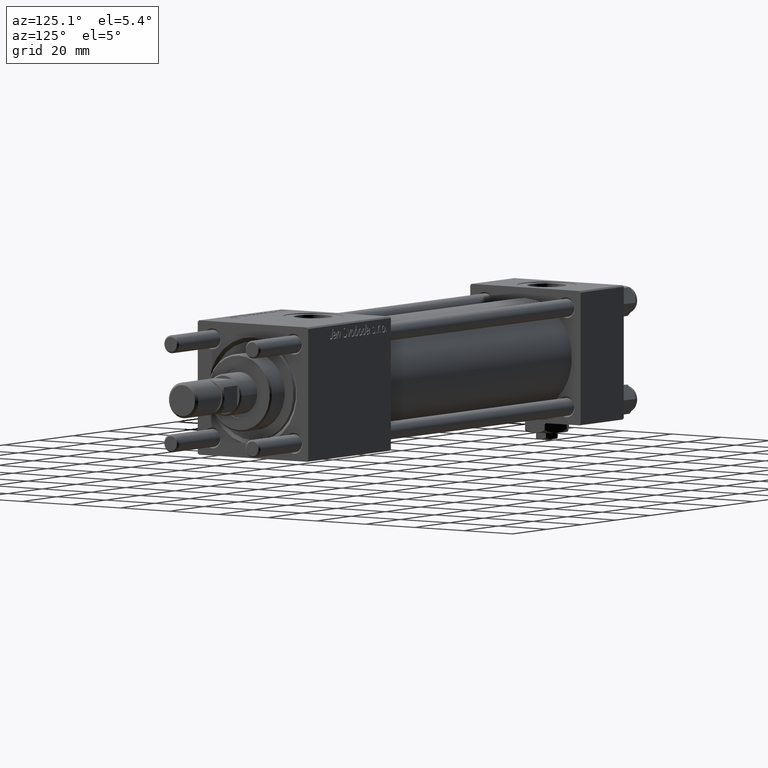
[diagram: clean part render]
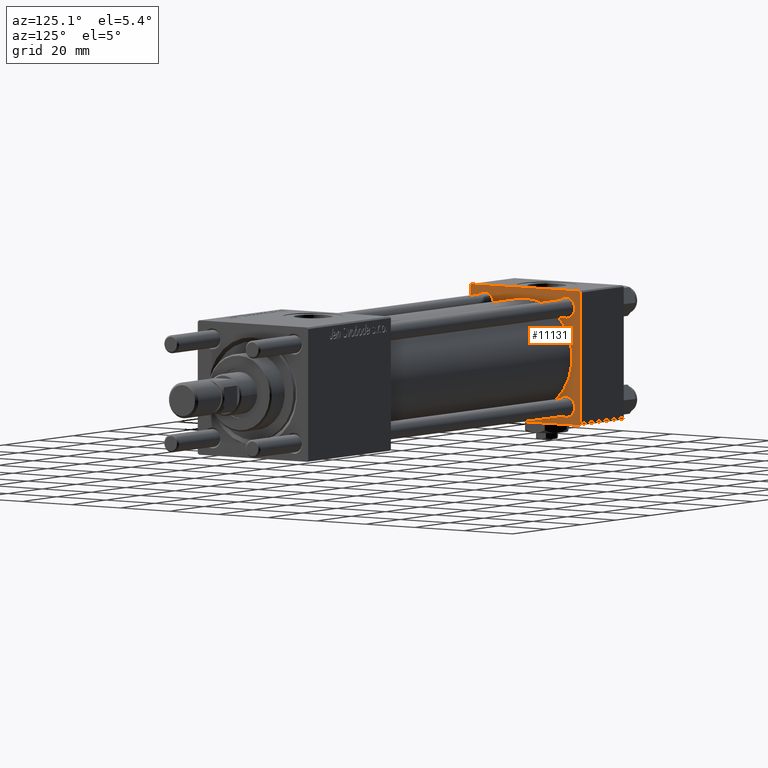
[diagram: same view with one face highlighted and labeled with its STEP entity id]
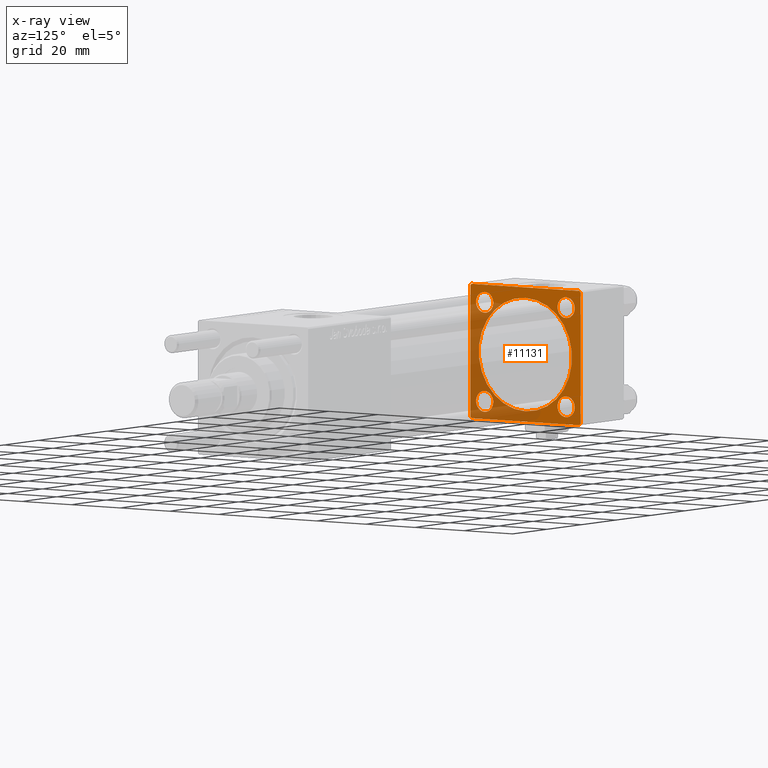
[diagram: x-ray of the same camera — body ghosted, the highlighted face saturated]
A machine part, auxiliary view. The second image highlights one B-rep face of the part: STEP entity #11131.
The next image is the same camera in x-ray: the body ghosted, the highlighted face saturated — about 39% of this face is hidden behind the body in this view.
In plain terms, the highlighted planar face has unit normal (-1, 0, 0).
Its self-contained STEP definition (entity closure, byte-faithful):
#255 = VERTEX_POINT ( 'NONE', #50735 ) ;
#278 = VERTEX_POINT ( 'NONE', #51613 ) ;
#405 = ORIENTED_EDGE ( 'NONE', *, *, #25760, .T. ) ;
#498 = EDGE_CURVE ( 'NONE', #20379, #278, #9229, .T. ) ;
#1074 = CARTESIAN_POINT ( 'NONE',  ( 25.00000000000000000, -16.59999999999999076, 20.09999999999998721 ) ) ;
#1351 = DIRECTION ( 'NONE',  ( 0.000000000000000000, -1.000000000000000000, -2.312964634635742957E-16 ) ) ;
#1618 = DIRECTION ( 'NONE',  ( -1.000000000000000000, 0.000000000000000000, -0.000000000000000000 ) ) ;
#1764 = VECTOR ( 'NONE', #13071, 999.9999999999998863 ) ;
#1952 = ORIENTED_EDGE ( 'NONE', *, *, #31156, .T. ) ;
#3039 = LINE ( 'NONE', #48104, #19505 ) ;
#3225 = ORIENTED_EDGE ( 'NONE', *, *, #35104, .T. ) ;
#3456 = CARTESIAN_POINT ( 'NONE',  ( 25.00000000000000000, 22.50000000000000000, -21.99999999999998224 ) ) ;
#3791 = AXIS2_PLACEMENT_3D ( 'NONE', #20032, #56141, #52236 ) ;
#3993 = VERTEX_POINT ( 'NONE', #28712 ) ;
#4064 = LINE ( 'NONE', #8236, #4408 ) ;
#4408 = VECTOR ( 'NONE', #44356, 1000.000000000000114 ) ;
#5376 = CARTESIAN_POINT ( 'NONE',  ( 25.00000000000000000, -16.59999999999999076, -16.60000000000000853 ) ) ;
#5606 = DIRECTION ( 'NONE',  ( 0.000000000000000000, 0.000000000000000000, 1.000000000000000000 ) ) ;
#5842 = CARTESIAN_POINT ( 'NONE',  ( 25.00000000000000000, 22.50000000000000000, 21.99999999999999645 ) ) ;
#6404 = AXIS2_PLACEMENT_3D ( 'NONE', #33838, #1618, #55919 ) ;
#6422 = EDGE_CURVE ( 'NONE', #255, #31220, #41635, .T. ) ;
#6491 = EDGE_CURVE ( 'NONE', #34308, #34764, #44476, .T. ) ;
#6609 = EDGE_CURVE ( 'NONE', #278, #20379, #45520, .T. ) ;
#8236 = CARTESIAN_POINT ( 'NONE',  ( 25.00000000000000000, 21.99999999999999289, 22.50000000000000355 ) ) ;
#8265 = AXIS2_PLACEMENT_3D ( 'NONE', #55337, #32678, #29080 ) ;
#9042 = VERTEX_POINT ( 'NONE', #13213 ) ;
#9229 = CIRCLE ( 'NONE', #16831, 3.500000000000003109 ) ;
#9428 = CARTESIAN_POINT ( 'NONE',  ( 25.00000000000000000, 22.50000000000000000, 22.50000000000000355 ) ) ;
#9733 = EDGE_CURVE ( 'NONE', #9042, #19826, #40227, .T. ) ;
#10085 = DIRECTION ( 'NONE',  ( -1.000000000000000000, 0.000000000000000000, -0.000000000000000000 ) ) ;
#10227 = ORIENTED_EDGE ( 'NONE', *, *, #46182, .T. ) ;
#11008 = CIRCLE ( 'NONE', #42457, 3.499999999999978684 ) ;
#11131 = ADVANCED_FACE ( 'NONE', ( #38714, #32138, #50326, #40785, #13918, #27357 ), #58989, .F. ) ;
#11399 = CARTESIAN_POINT ( 'NONE',  ( 25.00000000000000000, 21.99999999999999289, -22.49999999999999645 ) ) ;
#11889 = CARTESIAN_POINT ( 'NONE',  ( 25.00000000000000000, -22.50000000000000000, 22.00000000000000000 ) ) ;
#13071 = DIRECTION ( 'NONE',  ( -0.000000000000000000, -0.7071067811865525687, -0.7071067811865425767 ) ) ;
#13178 = EDGE_CURVE ( 'NONE', #56369, #3993, #19263, .T. ) ;
#13213 = CARTESIAN_POINT ( 'NONE',  ( 25.00000000000000000, -21.99999999999997868, 22.50000000000000000 ) ) ;
#13381 = CARTESIAN_POINT ( 'NONE',  ( 25.00000000000000000, 22.50000000000000000, -22.49999999999999645 ) ) ;
#13549 = VERTEX_POINT ( 'NONE', #11399 ) ;
#13633 = DIRECTION ( 'NONE',  ( -1.000000000000000000, 0.000000000000000000, -0.000000000000000000 ) ) ;
#13918 = FACE_BOUND ( 'NONE', #37761, .T. ) ;
#14283 = CIRCLE ( 'NONE', #3791, 3.500000000000003109 ) ;
#14820 = DIRECTION ( 'NONE',  ( 1.000000000000000000, -0.000000000000000000, 0.000000000000000000 ) ) ;
#15285 = CARTESIAN_POINT ( 'NONE',  ( 25.00000000000000000, -16.59999999999999076, -13.10000000000003162 ) ) ;
#15931 = AXIS2_PLACEMENT_3D ( 'NONE', #22148, #16206, #26040 ) ;
#15990 = ORIENTED_EDGE ( 'NONE', *, *, #6609, .T. ) ;
#16008 = DIRECTION ( 'NONE',  ( -0.000000000000000000, 0.7071067811865426878, 0.7071067811865524577 ) ) ;
#16206 = DIRECTION ( 'NONE',  ( -1.000000000000000000, 0.000000000000000000, -0.000000000000000000 ) ) ;
#16831 = AXIS2_PLACEMENT_3D ( 'NONE', #23134, #32409, #18958 ) ;
#17310 = ORIENTED_EDGE ( 'NONE', *, *, #6422, .F. ) ;
#18635 = VECTOR ( 'NONE', #16008, 1000.000000000000000 ) ;
#18958 = DIRECTION ( 'NONE',  ( 0.000000000000000000, 0.000000000000000000, 1.000000000000000000 ) ) ;
#19263 = LINE ( 'NONE', #37473, #38987 ) ;
#19347 = CARTESIAN_POINT ( 'NONE',  ( 25.00000000000000000, 22.50000000000000000, -21.99999999999996803 ) ) ;
#19403 = DIRECTION ( 'NONE',  ( -1.000000000000000000, 0.000000000000000000, -0.000000000000000000 ) ) ;
#19505 = VECTOR ( 'NONE', #25420, 1000.000000000000000 ) ;
#19693 = CIRCLE ( 'NONE', #33093, 3.500000000000003109 ) ;
#19826 = VERTEX_POINT ( 'NONE', #20236 ) ;
#20032 = CARTESIAN_POINT ( 'NONE',  ( 25.00000000000000000, 16.59999999999999787, 16.60000000000000497 ) ) ;
#20236 = CARTESIAN_POINT ( 'NONE',  ( 25.00000000000000000, -22.50000000000000000, 22.00000000000000000 ) ) ;
#20379 = VERTEX_POINT ( 'NONE', #53492 ) ;
#21262 = AXIS2_PLACEMENT_3D ( 'NONE', #46427, #32416, #46721 ) ;
#21581 = ORIENTED_EDGE ( 'NONE', *, *, #58584, .T. ) ;
#22148 = CARTESIAN_POINT ( 'NONE',  ( 25.00000000000000000, 16.59999999999999787, -16.60000000000000497 ) ) ;
#22315 = LINE ( 'NONE', #13381, #52826 ) ;
#23134 = CARTESIAN_POINT ( 'NONE',  ( 25.00000000000000000, 16.59999999999999787, -16.60000000000000497 ) ) ;
#23155 = CIRCLE ( 'NONE', #46044, 3.499999999999975131 ) ;
#23333 = EDGE_LOOP ( 'NONE', ( #49281, #27507, #49245, #38242, #3225, #47684, #405, #24607 ) ) ;
#23580 = DIRECTION ( 'NONE',  ( 0.000000000000000000, 0.000000000000000000, 1.000000000000000000 ) ) ;
#24361 = DIRECTION ( 'NONE',  ( 0.000000000000000000, 0.000000000000000000, 1.000000000000000000 ) ) ;
#24607 = ORIENTED_EDGE ( 'NONE', *, *, #13178, .T. ) ;
#25420 = DIRECTION ( 'NONE',  ( 0.000000000000000000, 0.000000000000000000, -1.000000000000000000 ) ) ;
#25760 = EDGE_CURVE ( 'NONE', #19826, #56369, #36470, .T. ) ;
#26040 = DIRECTION ( 'NONE',  ( 0.000000000000000000, 0.000000000000000000, 1.000000000000000000 ) ) ;
#26587 = CIRCLE ( 'NONE', #57080, 19.00000000000000000 ) ;
#26670 = EDGE_LOOP ( 'NONE', ( #21581, #10227 ) ) ;
#27143 = VERTEX_POINT ( 'NONE', #34483 ) ;
#27357 = FACE_OUTER_BOUND ( 'NONE', #23333, .T. ) ;
#27507 = ORIENTED_EDGE ( 'NONE', *, *, #42399, .T. ) ;
#27755 = ORIENTED_EDGE ( 'NONE', *, *, #6491, .T. ) ;
#28712 = CARTESIAN_POINT ( 'NONE',  ( 25.00000000000000000, -21.99999999999997158, -22.50000000000000711 ) ) ;
#29080 = DIRECTION ( 'NONE',  ( 0.000000000000000000, 0.000000000000000000, 1.000000000000000000 ) ) ;
#31156 = EDGE_CURVE ( 'NONE', #34764, #34308, #23155, .T. ) ;
#31220 = VERTEX_POINT ( 'NONE', #42382 ) ;
#31726 = VERTEX_POINT ( 'NONE', #1074 ) ;
#31727 = EDGE_CURVE ( 'NONE', #27143, #31726, #47935, .T. ) ;
#32138 = FACE_BOUND ( 'NONE', #43988, .T. ) ;
#32185 = VERTEX_POINT ( 'NONE', #32354 ) ;
#32354 = CARTESIAN_POINT ( 'NONE',  ( 25.00000000000000000, 16.59999999999999787, 13.10000000000000142 ) ) ;
#32398 = VERTEX_POINT ( 'NONE', #19347 ) ;
#32406 = ORIENTED_EDGE ( 'NONE', *, *, #42356, .T. ) ;
#32409 = DIRECTION ( 'NONE',  ( -1.000000000000000000, 0.000000000000000000, -0.000000000000000000 ) ) ;
#32416 = DIRECTION ( 'NONE',  ( -1.000000000000000000, 0.000000000000000000, -0.000000000000000000 ) ) ;
#32678 = DIRECTION ( 'NONE',  ( 1.000000000000000000, -0.000000000000000000, 0.000000000000000000 ) ) ;
#33005 = CARTESIAN_POINT ( 'NONE',  ( 25.00000000000000000, 16.59999999999999787, 16.60000000000000497 ) ) ;
#33093 = AXIS2_PLACEMENT_3D ( 'NONE', #33005, #41952, #42533 ) ;
#33171 = DIRECTION ( 'NONE',  ( 0.000000000000000000, 0.000000000000000000, -1.000000000000000000 ) ) ;
#33838 = CARTESIAN_POINT ( 'NONE',  ( 25.00000000000000000, -16.59999999999999076, -16.60000000000000853 ) ) ;
#34169 = EDGE_LOOP ( 'NONE', ( #42936, #32406 ) ) ;
#34308 = VERTEX_POINT ( 'NONE', #15285 ) ;
#34483 = CARTESIAN_POINT ( 'NONE',  ( 25.00000000000000000, -16.59999999999999076, 13.10000000000002807 ) ) ;
#34764 = VERTEX_POINT ( 'NONE', #49789 ) ;
#34783 = VERTEX_POINT ( 'NONE', #54560 ) ;
#35104 = EDGE_CURVE ( 'NONE', #34783, #9042, #58667, .T. ) ;
#35716 = CARTESIAN_POINT ( 'NONE',  ( 25.00000000000000000, 0.000000000000000000, 0.000000000000000000 ) ) ;
#36239 = EDGE_CURVE ( 'NONE', #46024, #32398, #3039, .T. ) ;
#36470 = LINE ( 'NONE', #50478, #45879 ) ;
#36995 = ORIENTED_EDGE ( 'NONE', *, *, #57954, .F. ) ;
#37473 = CARTESIAN_POINT ( 'NONE',  ( 25.00000000000000000, -21.99999999999998579, -22.50000000000000711 ) ) ;
#37761 = EDGE_LOOP ( 'NONE', ( #17310, #36995 ) ) ;
#38242 = ORIENTED_EDGE ( 'NONE', *, *, #45964, .T. ) ;
#38714 = FACE_BOUND ( 'NONE', #43594, .T. ) ;
#38987 = VECTOR ( 'NONE', #55657, 1000.000000000000000 ) ;
#39465 = VECTOR ( 'NONE', #45543, 1000.000000000000000 ) ;
#39652 = EDGE_CURVE ( 'NONE', #13549, #3993, #22315, .T. ) ;
#40227 = LINE ( 'NONE', #11889, #1764 ) ;
#40785 = FACE_BOUND ( 'NONE', #26670, .T. ) ;
#41635 = CIRCLE ( 'NONE', #8265, 19.00000000000000000 ) ;
#41952 = DIRECTION ( 'NONE',  ( -1.000000000000000000, 0.000000000000000000, -0.000000000000000000 ) ) ;
#42356 = EDGE_CURVE ( 'NONE', #31726, #27143, #11008, .T. ) ;
#42382 = CARTESIAN_POINT ( 'NONE',  ( 24.99999999999999289, -2.752562955852396712E-16, -19.00000000000000000 ) ) ;
#42399 = EDGE_CURVE ( 'NONE', #13549, #32398, #57766, .T. ) ;
#42457 = AXIS2_PLACEMENT_3D ( 'NONE', #43178, #10085, #5606 ) ;
#42533 = DIRECTION ( 'NONE',  ( 0.000000000000000000, 0.000000000000000000, 1.000000000000000000 ) ) ;
#42936 = ORIENTED_EDGE ( 'NONE', *, *, #31727, .T. ) ;
#43178 = CARTESIAN_POINT ( 'NONE',  ( 25.00000000000000000, -16.59999999999999076, 16.60000000000000853 ) ) ;
#43565 = CARTESIAN_POINT ( 'NONE',  ( 25.00000000000000000, 16.59999999999999787, 20.10000000000000853 ) ) ;
#43594 = EDGE_LOOP ( 'NONE', ( #1952, #27755 ) ) ;
#43988 = EDGE_LOOP ( 'NONE', ( #51096, #15990 ) ) ;
#44356 = DIRECTION ( 'NONE',  ( 0.000000000000000000, -0.7071067811865474617, 0.7071067811865474617 ) ) ;
#44476 = CIRCLE ( 'NONE', #6404, 3.499999999999975131 ) ;
#45520 = CIRCLE ( 'NONE', #15931, 3.500000000000003109 ) ;
#45543 = DIRECTION ( 'NONE',  ( 0.000000000000000000, -1.000000000000000000, -7.709882115452476934E-17 ) ) ;
#45879 = VECTOR ( 'NONE', #33171, 1000.000000000000000 ) ;
#45964 = EDGE_CURVE ( 'NONE', #46024, #34783, #4064, .T. ) ;
#46024 = VERTEX_POINT ( 'NONE', #5842 ) ;
#46044 = AXIS2_PLACEMENT_3D ( 'NONE', #5376, #19403, #23580 ) ;
#46182 = EDGE_CURVE ( 'NONE', #54483, #32185, #19693, .T. ) ;
#46427 = CARTESIAN_POINT ( 'NONE',  ( 25.00000000000000000, -16.59999999999999076, 16.60000000000000853 ) ) ;
#46721 = DIRECTION ( 'NONE',  ( 0.000000000000000000, 0.000000000000000000, 1.000000000000000000 ) ) ;
#47684 = ORIENTED_EDGE ( 'NONE', *, *, #9733, .T. ) ;
#47935 = CIRCLE ( 'NONE', #21262, 3.499999999999978684 ) ;
#48104 = CARTESIAN_POINT ( 'NONE',  ( 25.00000000000000000, 22.50000000000000000, 22.50000000000000355 ) ) ;
#49245 = ORIENTED_EDGE ( 'NONE', *, *, #36239, .F. ) ;
#49281 = ORIENTED_EDGE ( 'NONE', *, *, #39652, .F. ) ;
#49789 = CARTESIAN_POINT ( 'NONE',  ( 25.00000000000000000, -16.59999999999999076, -20.09999999999998366 ) ) ;
#50326 = FACE_BOUND ( 'NONE', #34169, .T. ) ;
#50478 = CARTESIAN_POINT ( 'NONE',  ( 25.00000000000000000, -22.50000000000000000, 22.50000000000000000 ) ) ;
#50735 = CARTESIAN_POINT ( 'NONE',  ( 24.99999999999999289, -2.602085213965210642E-15, 19.00000000000000000 ) ) ;
#51096 = ORIENTED_EDGE ( 'NONE', *, *, #498, .T. ) ;
#51519 = CARTESIAN_POINT ( 'NONE',  ( 24.99999999999999289, -2.602085213965210642E-15, 0.000000000000000000 ) ) ;
#51613 = CARTESIAN_POINT ( 'NONE',  ( 25.00000000000000000, 16.59999999999999787, -13.10000000000000142 ) ) ;
#52236 = DIRECTION ( 'NONE',  ( 0.000000000000000000, 0.000000000000000000, 1.000000000000000000 ) ) ;
#52826 = VECTOR ( 'NONE', #1351, 1000.000000000000000 ) ;
#53492 = CARTESIAN_POINT ( 'NONE',  ( 25.00000000000000000, 16.59999999999999787, -20.10000000000000853 ) ) ;
#54205 = DIRECTION ( 'NONE',  ( -0.000000000000000000, 0.000000000000000000, 1.000000000000000000 ) ) ;
#54483 = VERTEX_POINT ( 'NONE', #43565 ) ;
#54560 = CARTESIAN_POINT ( 'NONE',  ( 25.00000000000000000, 21.99999999999999289, 22.50000000000000355 ) ) ;
#54654 = CARTESIAN_POINT ( 'NONE',  ( 25.00000000000000000, -22.50000000000000000, -21.99999999999997158 ) ) ;
#55337 = CARTESIAN_POINT ( 'NONE',  ( 24.99999999999999289, -2.602085213965210642E-15, 0.000000000000000000 ) ) ;
#55657 = DIRECTION ( 'NONE',  ( 0.000000000000000000, 0.7071067811865426878, -0.7071067811865524577 ) ) ;
#55919 = DIRECTION ( 'NONE',  ( 0.000000000000000000, 0.000000000000000000, 1.000000000000000000 ) ) ;
#56141 = DIRECTION ( 'NONE',  ( -1.000000000000000000, 0.000000000000000000, -0.000000000000000000 ) ) ;
#56369 = VERTEX_POINT ( 'NONE', #54654 ) ;
#57080 = AXIS2_PLACEMENT_3D ( 'NONE', #51519, #14820, #24361 ) ;
#57766 = LINE ( 'NONE', #3456, #18635 ) ;
#57954 = EDGE_CURVE ( 'NONE', #31220, #255, #26587, .T. ) ;
#58020 = AXIS2_PLACEMENT_3D ( 'NONE', #35716, #13633, #54205 ) ;
#58584 = EDGE_CURVE ( 'NONE', #32185, #54483, #14283, .T. ) ;
#58667 = LINE ( 'NONE', #9428, #39465 ) ;
#58989 = PLANE ( 'NONE',  #58020 ) ;